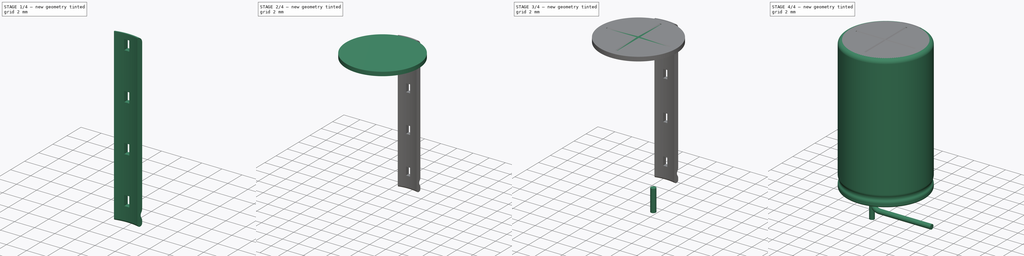
[diagram: build sequence overview — one tinted view per stage of 4, left to right]
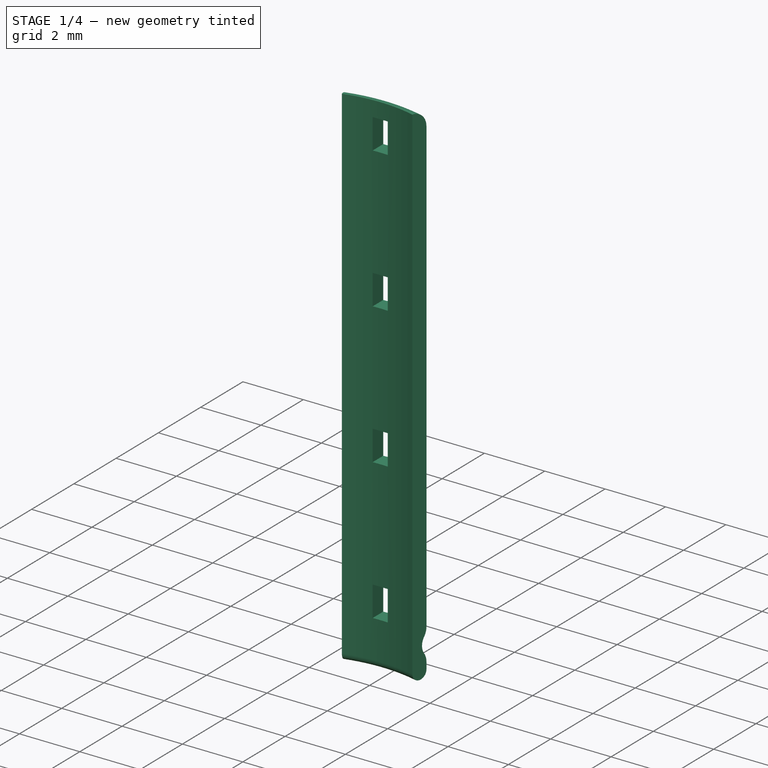
[diagram: stage 1 of 4 — iso view after this stage's code; geometry added in this stage tinted green]
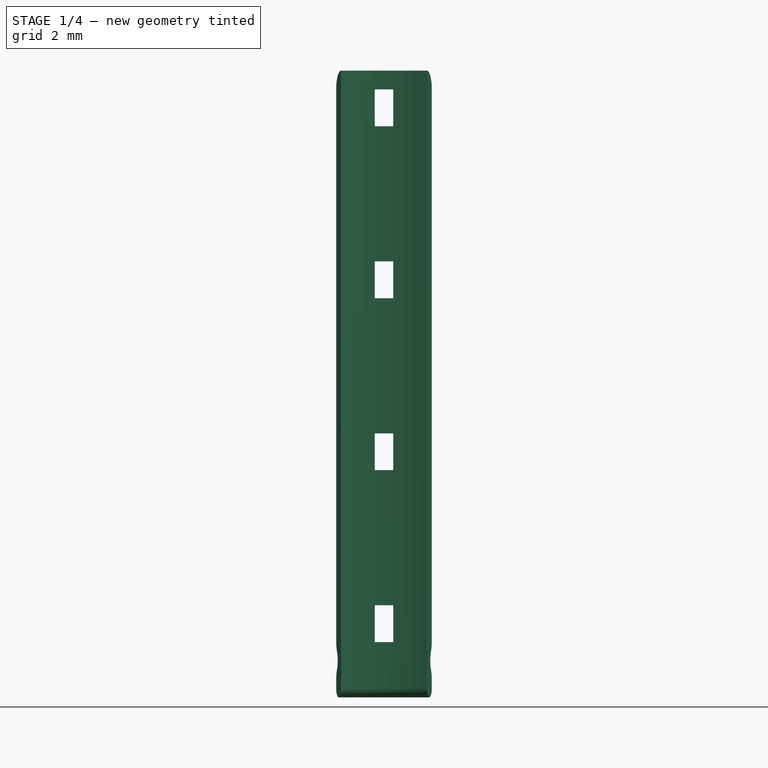
[diagram: stage 1 of 4 — front view after this stage's code; geometry added in this stage tinted green]
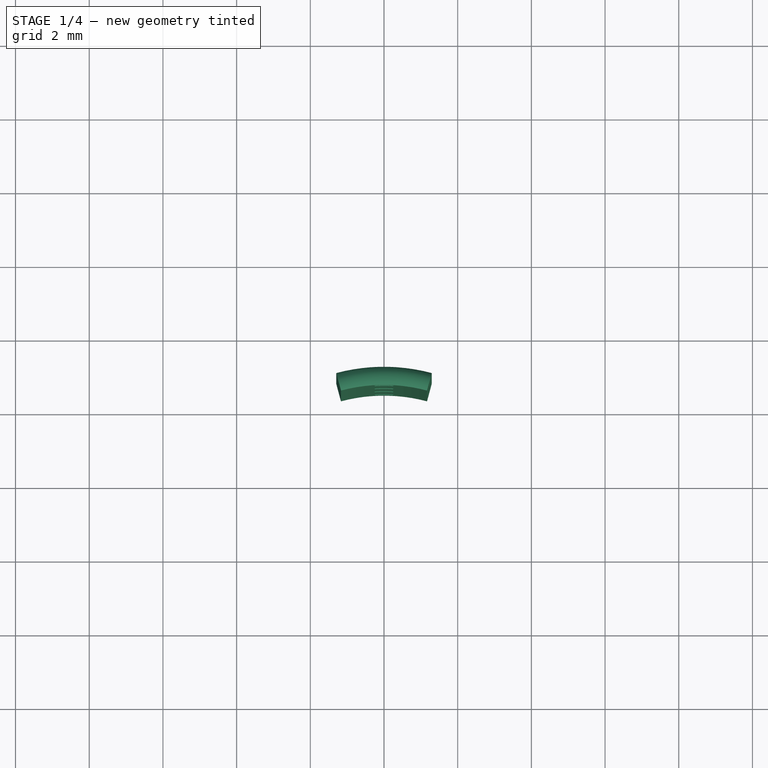
[diagram: stage 1 of 4 — top view after this stage's code; geometry added in this stage tinted green]
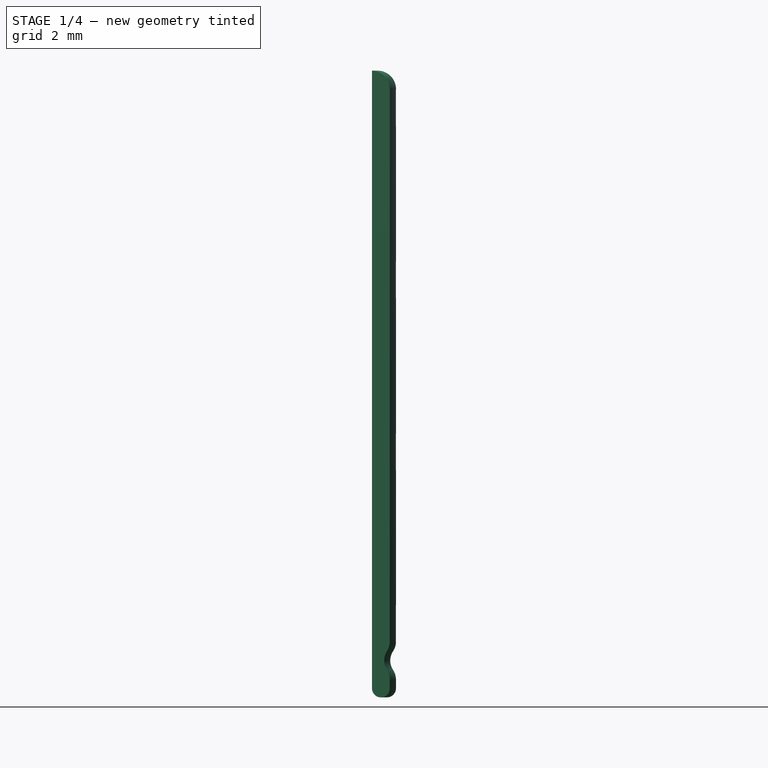
[diagram: stage 1 of 4 — right view after this stage's code; geometry added in this stage tinted green]
FCSTD DOCUMENT  (FreeCAD 0.19R16945 (Git))
Label: Capacitor_Electrolytic_THT_Radial_Straight_D10_H17_P5_d0.6_LL2.6
License: All rights reserved
LicenseURL: http://en.wikipedia.org/wiki/All_rights_reserved
objects: Sketcher::SketchObject×9, PartDesign::Body×7, PartDesign::ShapeBinder×3, PartDesign::Pocket×3, PartDesign::Revolution×2, PartDesign::FeatureBase×2, PartDesign::Pad×2, PartDesign::AdditivePipe×1, Spreadsheet::Sheet×1, PartDesign::PolarPattern×1, PartDesign::LinearPattern×1, Part::MultiFuse×1
note: 40 computed .brp shape members not serialized (recipe doc carries the construction recipe); baked Part::Feature solids carry a one-line shape summary decoded from their .brp

FEATURE [PartDesign::Body] Body003  label="LeadAngledClone"
  BaseFeature = -> Body002
  Group = -> [Clone]
  Origin = -> Origin003
  Placement = pos=(0,5,0) rot=(0,0,1;0rad)
  Tip = -> Clone
  expr: Placement.Base.y = Spreadsheet.leadpitch
FEATURE [Sketcher::SketchObject] Sketch005
  AttachmentOffset = pos=(0,0,0) rot=(0,1,0;0.261799rad)
  MapMode = 5
  Placement = pos=(0,0,0) rot=(0.476905,0.621515,0.621515;2.25159rad)
  Support = -> [YZ_Plane004]
  expr: Constraints[19] = Sketch.Constraints[25]
  expr: Constraints[15] = Sketch.Constraints[20] + 0.01mm
  expr: Constraints[18] = Sketch.Constraints[24]
  expr: Constraints[17] = Sketch.Constraints[23]
  expr: Constraints[12] = Sketch.Constraints[14]
  expr: Constraints[13] = Sketch.Constraints[15]
  expr: Constraints[6] = Sketch.Constraints[8]
  expr: Constraints[11] = Sketch.Constraints[13]
  expr: Constraints[5] = Sketch.Constraints[7] + 0.01mm
  sketch-geometry (9):
    g0: LineSegment StartX=5.01 StartY=16.51 StartZ=0 EndX=5.01 EndY=1.52394 EndZ=0
    g1: LineSegment StartX=5.01 StartY=0.476059 StartZ=0 EndX=5.01 EndY=0.25 EndZ=0
    g2: ArcOfCircle CenterX=4.51 CenterY=16.51 CenterZ=0 NormalX=0 NormalY=0 NormalZ=1 AngleXU=0 Radius=0.5 StartAngle=9e-16 EndAngle=1.5708
    g3: ArcOfCircle CenterX=5.31 CenterY=1 CenterZ=0 NormalX=0 NormalY=0 NormalZ=1 AngleXU=0 Radius=0.456302 StartAngle=2.56176 EndAngle=3.72142
    g4: ArcOfCircle CenterX=4.51 CenterY=1.52394 CenterZ=0 NormalX=0 NormalY=0 NormalZ=1 AngleXU=0 Radius=0.5 StartAngle=5.70335 EndAngle=6.28319
    g5: ArcOfCircle CenterX=4.51 CenterY=0.476059 CenterZ=0 NormalX=0 NormalY=0 NormalZ=1 AngleXU=0 Radius=0.5 StartAngle=0 EndAngle=0.579831
    g6: LineSegment StartX=0 StartY=17.01 StartZ=0 EndX=0 EndY=0 EndZ=0
    g7: ArcOfCircle CenterX=4.76 CenterY=0.25 CenterZ=0 NormalX=0 NormalY=0 NormalZ=1 AngleXU=0 Radius=0.25 StartAngle=3.14159 EndAngle=6.28319
    g8: LineSegment StartX=4.51 StartY=0.25 StartZ=0 EndX=4.51 EndY=17.01 EndZ=0
  constraints (25):
    c: PointOnObject(g6,g-2)
    c: Vertical(g0)
    c: Vertical(g1)
    c: Vertical(g1,g0)
    c: Tangent(g0,g2) = 1.5708
    c: DistanceX(g6,g0) = 5.01
    c: DistanceX(g2,g0) = 0.5
    c: Tangent(g3,g4) = 1.5708
    c: Tangent(g0,g4) = 1.5708
    c: Tangent(g1,g5) = 1.5708
    c: Tangent(g3,g5) = 1.5708
    c: DistanceX(g4,g0) = 0.5
    c: DistanceX(g5,g1) = 0.5
    c: DistanceY(g3,g3) = 0.5
    c: Coincident(g6,g-1)
    c: DistanceY(g6,g6) = 17.01
    c: Tangent(g1,g7) = 1.5708
    c: DistanceX(g7,g1) = 0.25
    c: DistanceY(g6,g3) = 1
    c: DistanceX(g1,g3) = 0.3
    c: Coincident(g8,g7)
    c: Coincident(g8,g2)
    c: Vertical(g8)
    c: Vertical(g2,g2)
    c: Horizontal(g2,g6)
FEATURE [PartDesign::Revolution] Revolution001
  Angle = 30
  Axis = (-2e-16,3e-16,1)
  Base = (0,0,0)
  Placement = pos=(0,0,0) rot=(0.57735,0.57735,0.57735;2.0944rad)
  Profile = -> Sketch005
  ReferenceAxis = -> Sketch005 [V_Axis]
  Reversed = true
FEATURE [PartDesign::Body] Body008  label="HousingTop"
  Group = -> [ShapeBinder002,Sketch013,Pad,Sketch014,Pocket001,PolarPattern]
  Origin = -> Origin008
  Tip = -> PolarPattern
FEATURE [Sketcher::SketchObject] Sketch015
  MapMode = 5
  Placement = pos=(0,0,0) rot=(1,0,0;1.5708rad)
  Support = -> [XZ_Plane004]
  sketch-geometry (4):
    g0: LineSegment StartX=-0.25 StartY=1.5 StartZ=0 EndX=0.25 EndY=1.5 EndZ=0
    g1: LineSegment StartX=0.25 StartY=1.5 StartZ=0 EndX=0.25 EndY=2.5 EndZ=0
    g2: LineSegment StartX=0.25 StartY=2.5 StartZ=0 EndX=-0.25 EndY=2.5 EndZ=0
    g3: LineSegment StartX=-0.25 StartY=2.5 StartZ=0 EndX=-0.25 EndY=1.5 EndZ=0
  constraints (11):
    c: Coincident(g0,g1)
    c: Coincident(g1,g2)
    c: Coincident(g2,g3)
    c: Coincident(g3,g0)
    c: Horizontal(g0)
    c: Vertical(g1)
    c: Vertical(g3)
    c: Symmetric(g1,g2,g-2)
    c: DistanceX(g0,g0) = 0.5
    c: DistanceY(g1,g1) = 1
    c: DistanceY(g-1,g0) = 1.5
FEATURE [PartDesign::Pocket] Pocket002
  BaseFeature = -> Revolution001
  Length = 5
  Length2 = 100
  Placement = pos=(0,0,0) rot=(0.57735,0.57735,0.57735;2.0944rad)
  Profile = -> Sketch015
  Type = 1
FEATURE [PartDesign::LinearPattern] LinearPattern
  BaseFeature = -> Pocket002
  Direction = -> Z_Axis004
  Length = 14
  Occurrences = 4
  Originals = -> [Pocket002]
  Placement = pos=(0,0,0) rot=(0.57735,0.57735,0.57735;2.0944rad)
  expr: Occurrences = floor(Spreadsheet.height / 3.5mm)
  expr: Length = Spreadsheet.height - 3mm
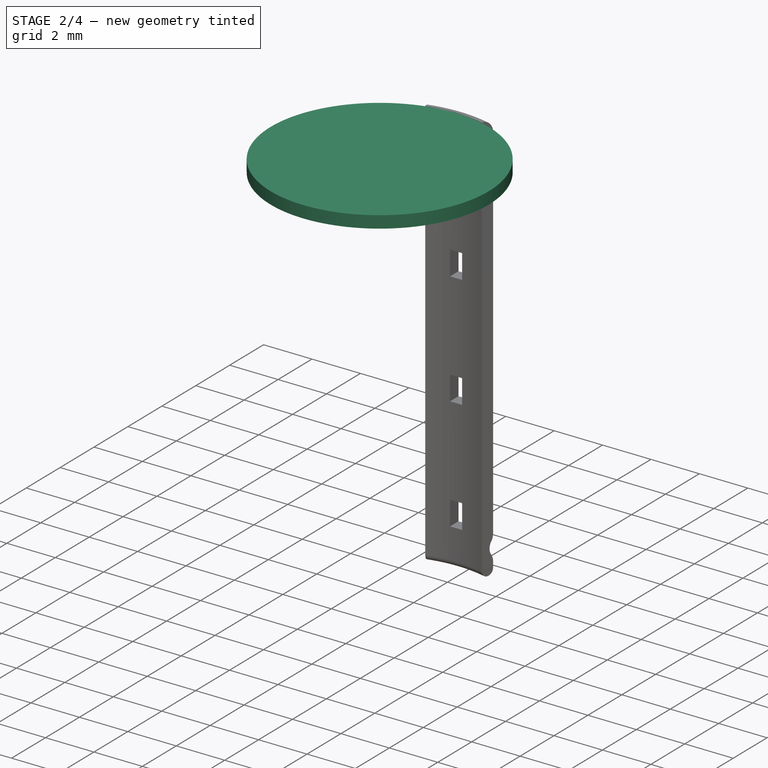
[diagram: stage 2 of 4 — iso view after this stage's code; geometry added in this stage tinted green]
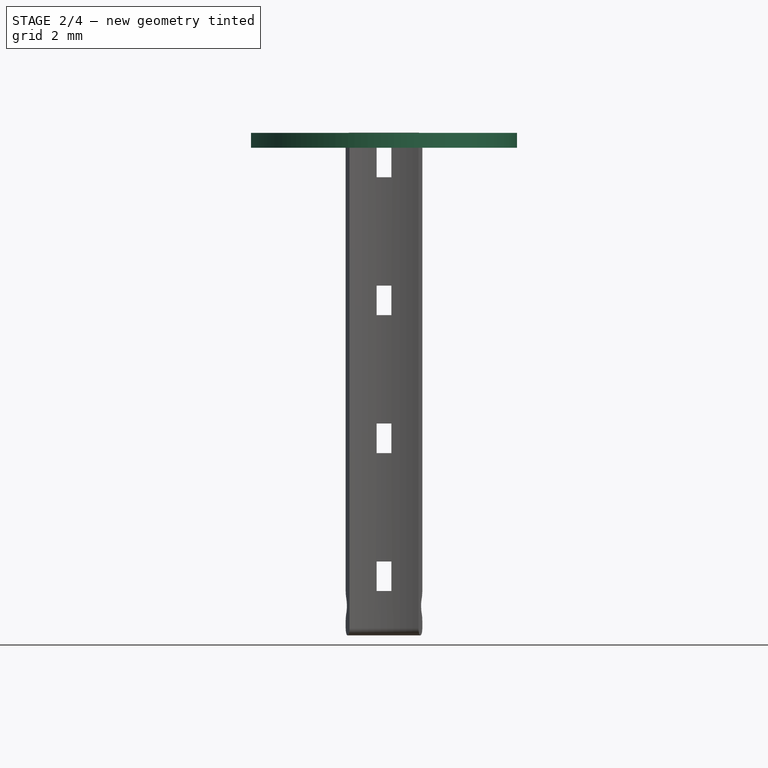
[diagram: stage 2 of 4 — front view after this stage's code; geometry added in this stage tinted green]
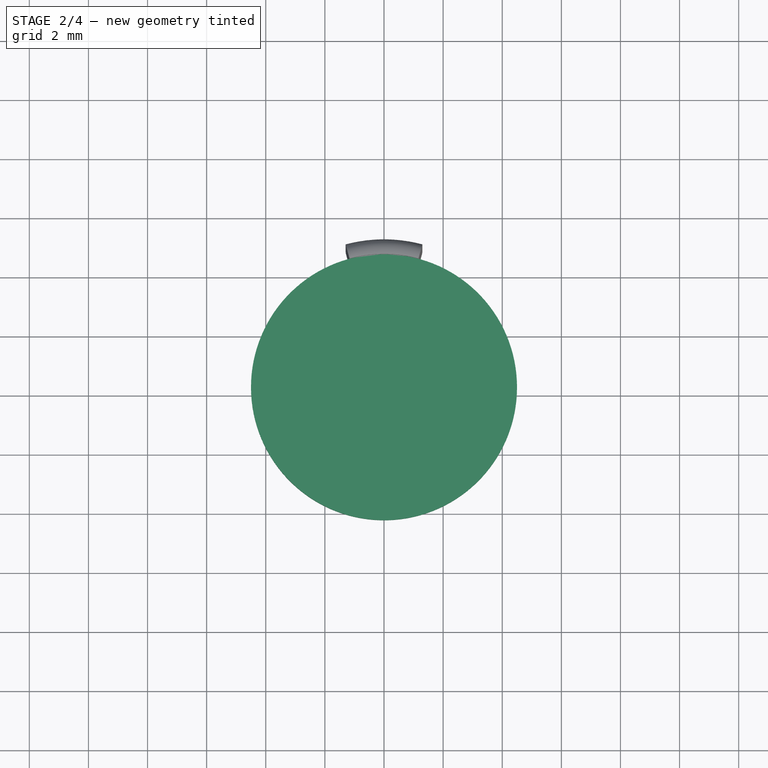
[diagram: stage 2 of 4 — top view after this stage's code; geometry added in this stage tinted green]
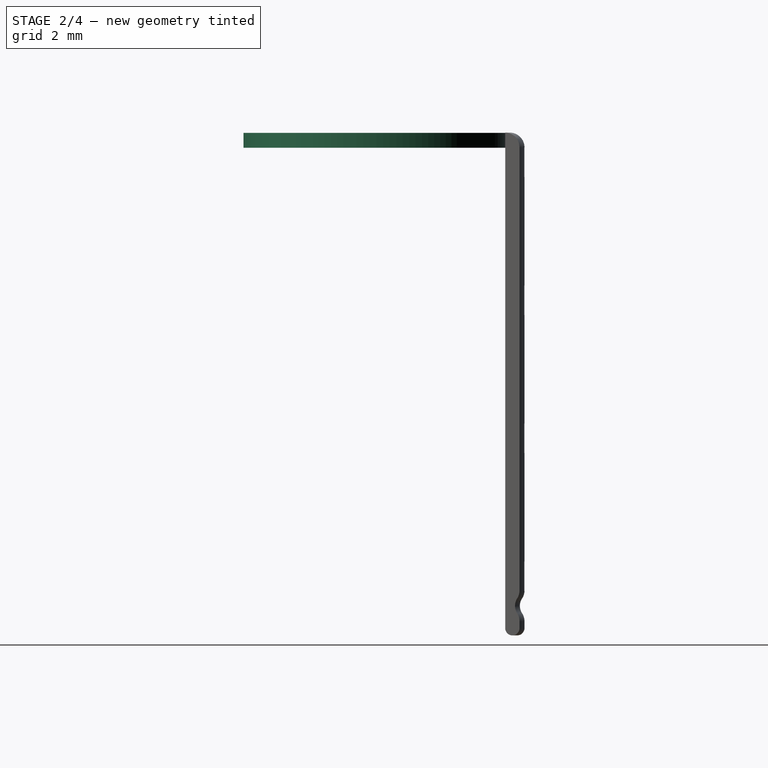
[diagram: stage 2 of 4 — right view after this stage's code; geometry added in this stage tinted green]
FEATURE [Sketcher::SketchObject] Sketch
  MapMode = 5
  Placement = pos=(0,0,0) rot=(1,0,0;1.5708rad)
  Support = -> [XZ_Plane]
  expr: Constraints[7] = Spreadsheet.diameter / 2
  expr: Constraints[20] = Spreadsheet.height
  sketch-geometry (10):
    g0: LineSegment StartX=0 StartY=17 StartZ=0 EndX=4.5 EndY=17 EndZ=0
    g1: LineSegment StartX=5 StartY=16.5 StartZ=0 EndX=5 EndY=1.52394 EndZ=0
    g2: LineSegment StartX=5 StartY=0.476059 StartZ=0 EndX=5 EndY=0.25 EndZ=0
    g3: ArcOfCircle CenterX=4.5 CenterY=16.5 CenterZ=0 NormalX=0 NormalY=0 NormalZ=1 AngleXU=0 Radius=0.5 StartAngle=-5.0173e-12 EndAngle=1.5708
    g4: ArcOfCircle CenterX=5.3 CenterY=1 CenterZ=0 NormalX=0 NormalY=0 NormalZ=1 AngleXU=0 Radius=0.456302 StartAngle=2.56176 EndAngle=3.72142
    g5: ArcOfCircle CenterX=4.5 CenterY=1.52394 CenterZ=0 NormalX=0 NormalY=0 NormalZ=1 AngleXU=0 Radius=0.5 StartAngle=5.70335 EndAngle=6.28319
    g6: ArcOfCircle CenterX=4.5 CenterY=0.476059 CenterZ=0 NormalX=0 NormalY=0 NormalZ=1 AngleXU=0 Radius=0.5 StartAngle=0 EndAngle=0.579831
    g7: LineSegment StartX=0 StartY=17 StartZ=0 EndX=0 EndY=0 EndZ=0
    g8: LineSegment StartX=0 StartY=0 StartZ=0 EndX=4.75 EndY=0 EndZ=0
    g9: ArcOfCircle CenterX=4.75 CenterY=0.25 CenterZ=0 NormalX=0 NormalY=0 NormalZ=1 AngleXU=0 Radius=0.25 StartAngle=4.71239 EndAngle=6.28319
  constraints (26):
    c: PointOnObject(g0,g-2)
    c: Horizontal(g0)
    c: Vertical(g1)
    c: Vertical(g2)
    c: Vertical(g2,g1)
    c: Tangent(g0,g3) = 1.5708
    c: Tangent(g1,g3) = 1.5708
    c: DistanceX(g0,g1) = 5
    c: DistanceX(g3,g1) = 0.5
    c: Tangent(g4,g5) = 1.5708
    c: Tangent(g1,g5) = 1.5708
    c: Tangent(g2,g6) = 1.5708
    c: Tangent(g4,g6) = 1.5708
    c: DistanceX(g5,g1) = 0.5
    c: DistanceX(g6,g2) = 0.5
    c: DistanceY(g4,g4) = 0.5
    c: Coincident(g0,g7)
    c: Coincident(g7,g8)
    c: Horizontal(g8)
    c: Coincident(g7,g-1)
    c: DistanceY(g7,g7) = 17
    c: Tangent(g2,g9) = 1.5708
    c: Tangent(g8,g9) = -1.5708
    c: DistanceX(g9,g2) = 0.25
    c: DistanceY(g7,g4) = 1
    c: DistanceX(g2,g4) = 0.3
FEATURE [PartDesign::Revolution] Revolution
  Angle = 360
  Axis = (0,-2e-16,1)
  Base = (0,0,0)
  Placement = pos=(0,0,0) rot=(1,0,0;1.5708rad)
  Profile = -> Sketch
  ReferenceAxis = -> Sketch [V_Axis]
  Reversed = true
FEATURE [PartDesign::Body] Body007  label="LeadStraightClone"
  BaseFeature = -> Body006
  Group = -> [Clone001]
  Origin = -> Origin007
  Placement = pos=(0,-5,0) rot=(0,0,1;0rad)
  Tip = -> Clone001
  expr: Placement.Base.y = -Spreadsheet.leadpitch
FEATURE [PartDesign::ShapeBinder] ShapeBinder
  Placement = pos=(0,0,0) rot=(1,0,0;1.5708rad)
  Support = -> [Revolution]
  TraceSupport = false
FEATURE [Sketcher::SketchObject] Sketch012
  AttachmentOffset = pos=(0,0,17) rot=(0,0,1;0rad)
  ExternalGeometry = -> [ShapeBinder]
  MapMode = 5
  Placement = pos=(0,0,17) rot=(0,0,1;0rad)
  Support = -> [XY_Plane]
  expr: AttachmentOffset.Base.z = Spreadsheet.height
  sketch-geometry (1):
    g0: Circle CenterX=0 CenterY=0 CenterZ=0 NormalX=0 NormalY=0 NormalZ=1 AngleXU=0 Radius=4.5
  constraints (2):
    c: Coincident(g0,g-1)
    c: Tangent(g0,g-3)
FEATURE [PartDesign::Pocket] Pocket
  BaseFeature = -> Revolution
  Length = 0.5
  Length2 = 100
  Placement = pos=(0,0,0) rot=(1,0,0;1.5708rad)
  Profile = -> Sketch012
  Type = 0
FEATURE [PartDesign::Body] Body  label="Housing"
  Group = -> [Sketch,Revolution,ShapeBinder,Sketch012,Pocket]
  Origin = -> Origin
  Tip = -> Pocket
FEATURE [PartDesign::ShapeBinder] ShapeBinder002
  Placement = pos=(0,0,-0.5) rot=(0,0,1;0rad)
  Support = -> [Pocket]
  TraceSupport = false
FEATURE [Sketcher::SketchObject] Sketch013
  ExternalGeometry = -> [ShapeBinder002]
  MapMode = 5
  Placement = pos=(0,0,16.5) rot=(0,0,1;0rad)
  Support = -> [ShapeBinder002]
  sketch-geometry (1):
    g0: Circle CenterX=0 CenterY=0 CenterZ=0 NormalX=0 NormalY=0 NormalZ=1 AngleXU=0 Radius=4.5
  constraints (2):
    c: Coincident(g0,g-1)
    c: Equal(g-3,g0)
FEATURE [PartDesign::Pad] Pad
  Length = 0.5
  Length2 = 100
  Placement = pos=(0,0,-0.5) rot=(0,0,1;0rad)
  Profile = -> Sketch013
  Type = 0
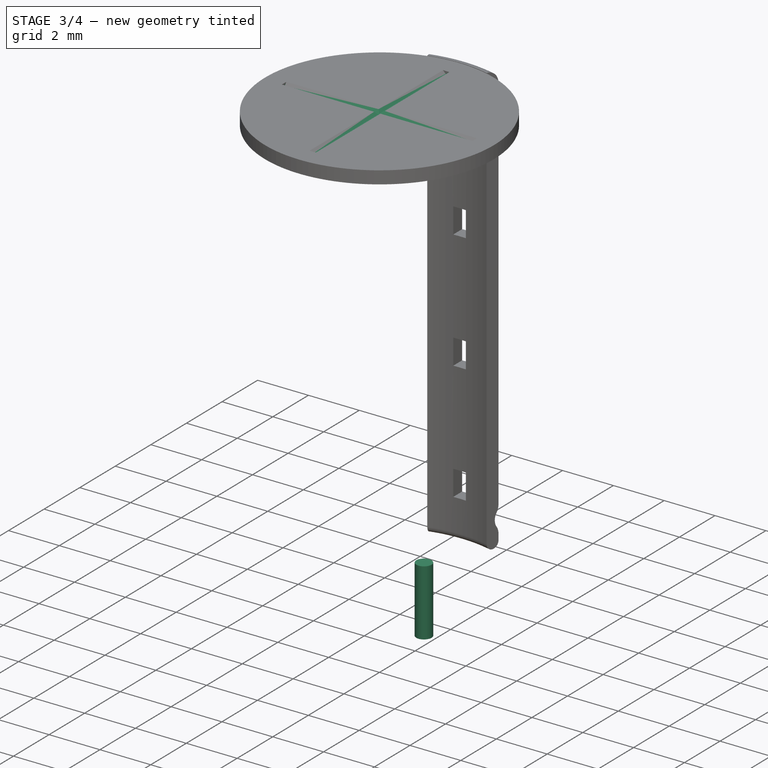
[diagram: stage 3 of 4 — iso view after this stage's code; geometry added in this stage tinted green]
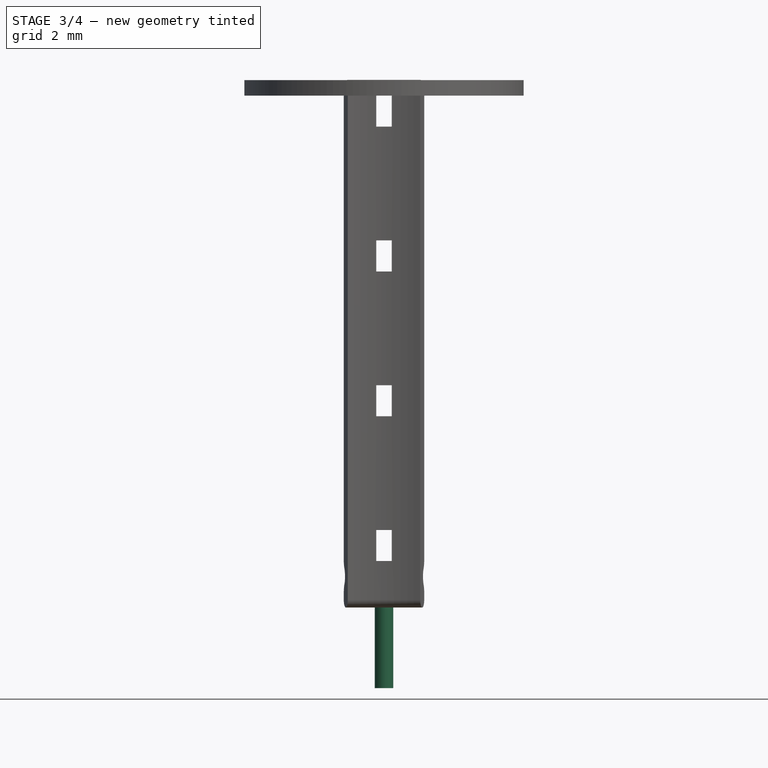
[diagram: stage 3 of 4 — front view after this stage's code; geometry added in this stage tinted green]
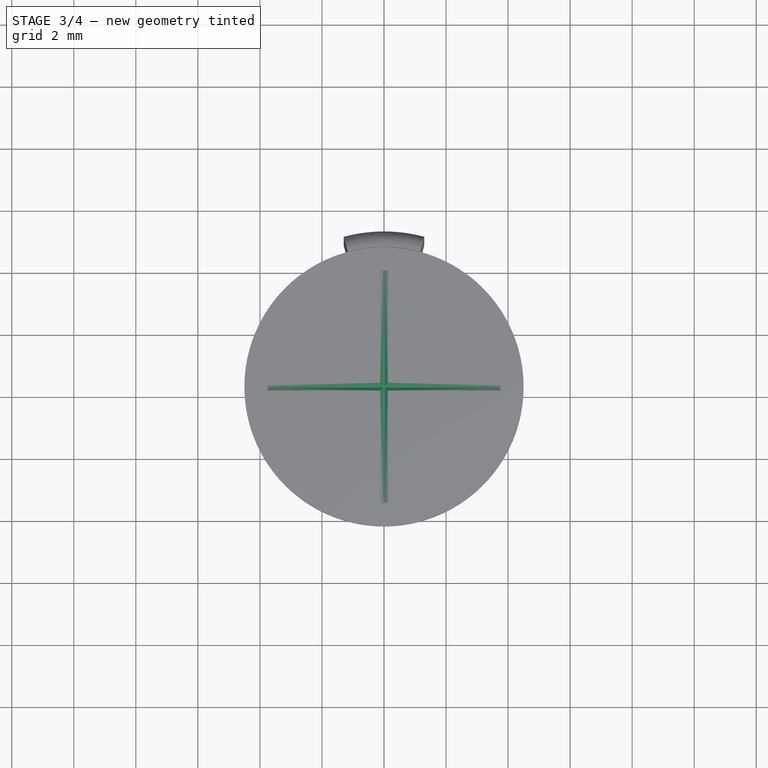
[diagram: stage 3 of 4 — top view after this stage's code; geometry added in this stage tinted green]
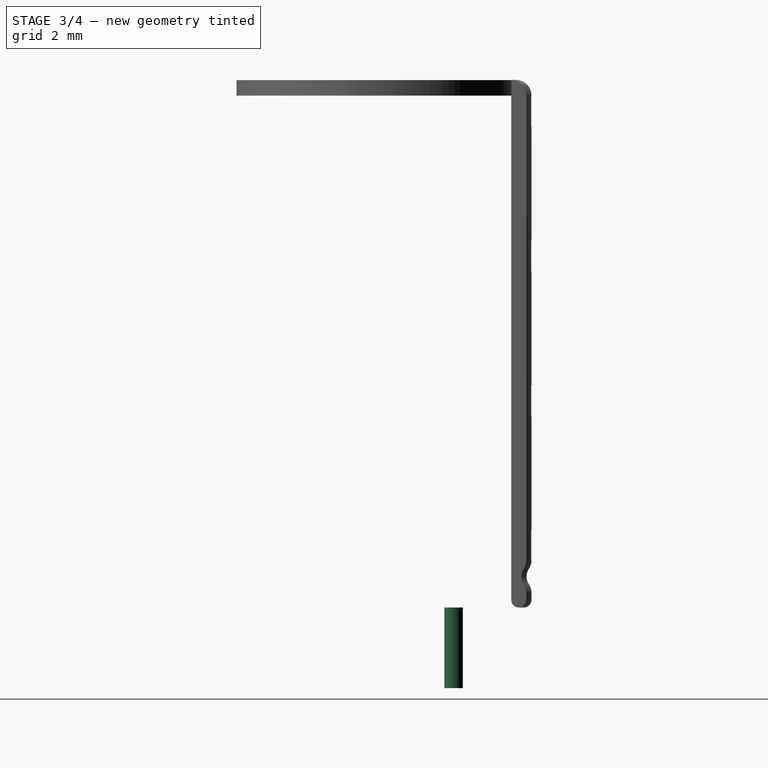
[diagram: stage 3 of 4 — right view after this stage's code; geometry added in this stage tinted green]
FEATURE [Sketcher::SketchObject] Sketch010
  AttachmentOffset = pos=(0,2.5,0) rot=(0,0,1;0rad)
  MapMode = 5
  Placement = pos=(0,2.5,0) rot=(0,0,1;0rad)
  Support = -> [XY_Plane006]
  expr: AttachmentOffset.Base.y = Spreadsheet.leadpitch / 2
  expr: Constraints[1] = Spreadsheet.leaddiameter / 2
  sketch-geometry (1):
    g0: Circle CenterX=0 CenterY=0 CenterZ=0 NormalX=0 NormalY=0 NormalZ=1 AngleXU=0 Radius=0.3
  constraints (2):
    c: Coincident(g0,g-1)
    c: Radius(g0) = 0.3
FEATURE [PartDesign::Pad] Pad002
  Length = 2.6
  Length2 = 100
  Profile = -> Sketch010
  Reversed = true
  Type = 0
  expr: Length = Spreadsheet.leadstraightlength
FEATURE [PartDesign::Body] Body006  label="LeadStraight"
  Group = -> [Sketch010,Pad002]
  Origin = -> Origin006
  Tip = -> Pad002
FEATURE [PartDesign::FeatureBase] Clone001
  BaseFeature = -> Body006
FEATURE [Sketcher::SketchObject] Sketch014
  MapMode = 5
  Placement = pos=(0,0,0) rot=(1,0,0;1.5708rad)
  Support = -> [XZ_Plane008]
  expr: Constraints[9] = Spreadsheet.height
  sketch-geometry (4):
    g0: LineSegment StartX=-0.125 StartY=17 StartZ=0 EndX=0.125 EndY=17 EndZ=0
    g1: LineSegment StartX=0.125 StartY=17 StartZ=0 EndX=0.025 EndY=16.9 EndZ=0
    g2: LineSegment StartX=0.025 StartY=16.9 StartZ=0 EndX=-0.025 EndY=16.9 EndZ=0
    g3: LineSegment StartX=-0.025 StartY=16.9 StartZ=0 EndX=-0.125 EndY=17 EndZ=0
  constraints (10):
    c: Coincident(g0,g1)
    c: Coincident(g1,g2)
    c: Coincident(g2,g3)
    c: Coincident(g3,g0)
    c: Symmetric(g0,g0,g-2)
    c: Symmetric(g1,g2,g-2)
    c: DistanceX(g2,g2) = 0.05
    c: DistanceX(g0,g0) = 0.25
    c: DistanceY(g1,g0) = 0.1
    c: DistanceY(g-1,g0) = 17
FEATURE [PartDesign::Pocket] Pocket001
  BaseFeature = -> Pad
  Length = 7.5
  Length2 = 100
  Midplane = true
  Placement = pos=(0,0,-0.5) rot=(0,0,1;0rad)
  Profile = -> Sketch014
  Type = 0
  expr: Length = 0.75 * Spreadsheet.diameter
FEATURE [PartDesign::PolarPattern] PolarPattern
  Angle = 180
  Axis = -> Z_Axis008
  BaseFeature = -> Pocket001
  Occurrences = 3
  Originals = -> [Pocket001]
  Placement = pos=(0,0,-0.5) rot=(0,0,1;0rad)
  Refine = true
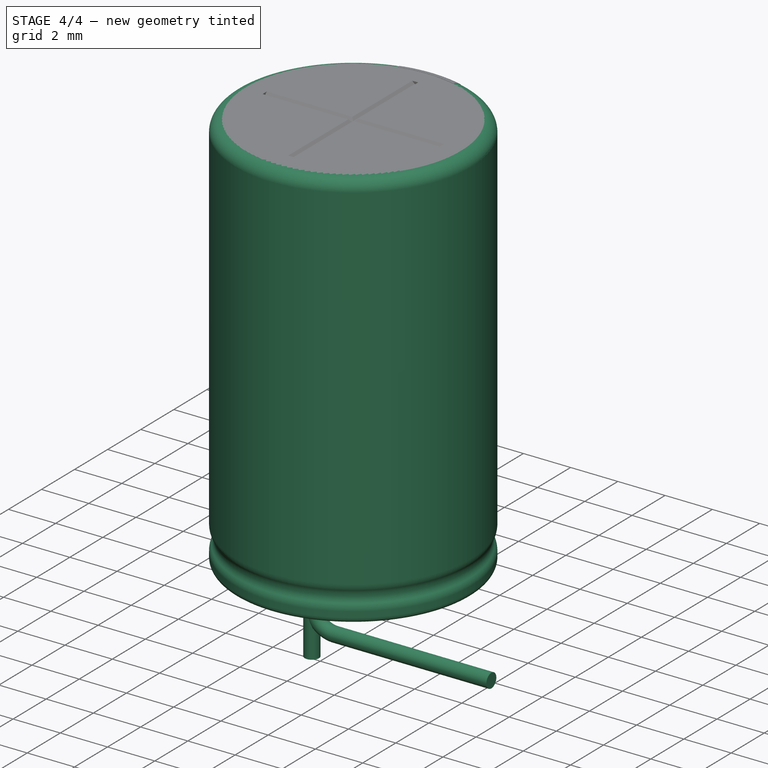
[diagram: stage 4 of 4 — iso view after this stage's code; geometry added in this stage tinted green]
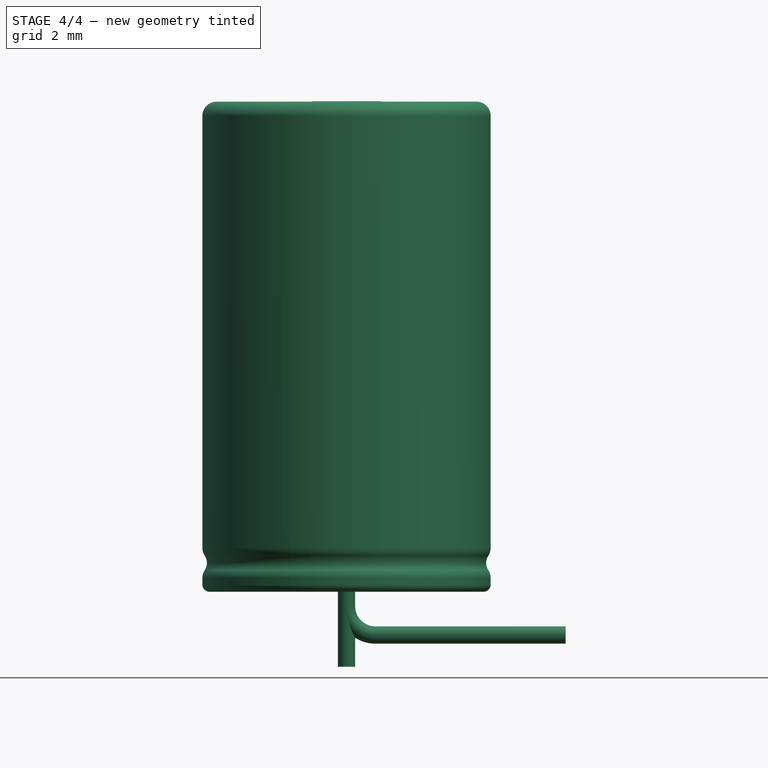
[diagram: stage 4 of 4 — front view after this stage's code; geometry added in this stage tinted green]
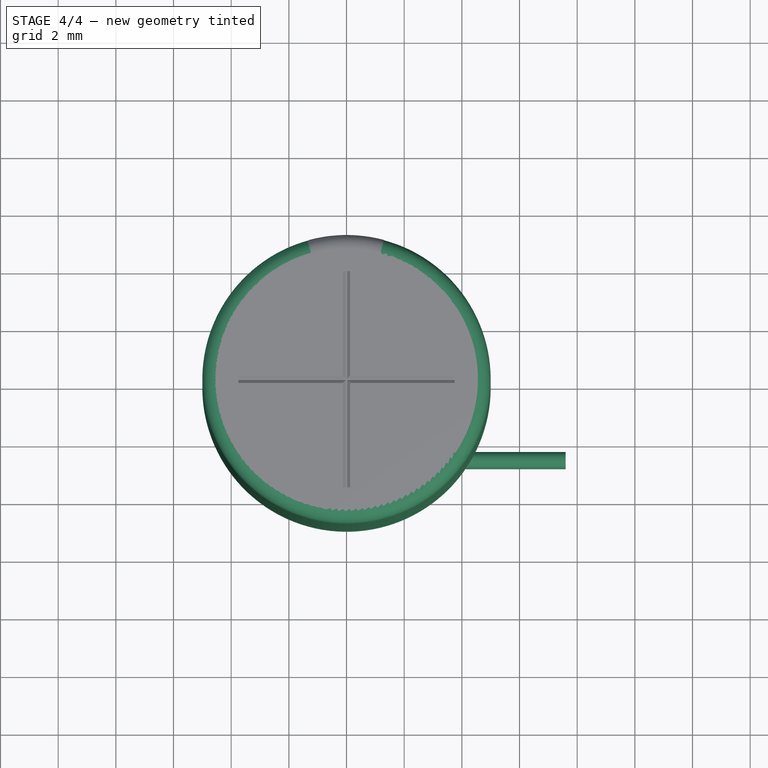
[diagram: stage 4 of 4 — top view after this stage's code; geometry added in this stage tinted green]
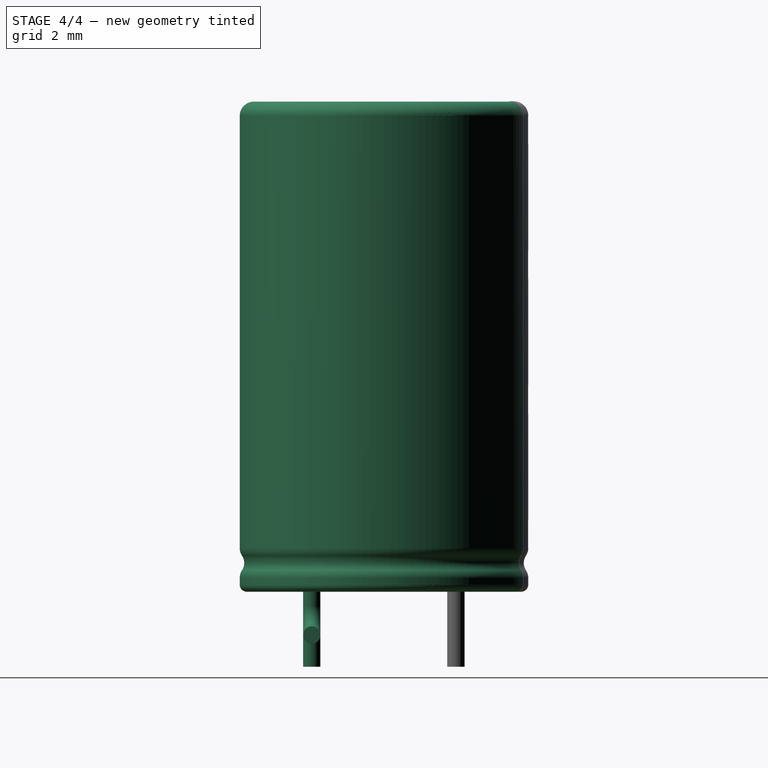
[diagram: stage 4 of 4 — right view after this stage's code; geometry added in this stage tinted green]
FEATURE [PartDesign::ShapeBinder] ShapeBinder001
  Placement = pos=(0,1e-16,-0.5) rot=(0,0,1;0rad)
  TraceSupport = false
FEATURE [Sketcher::SketchObject] Sketch003  label="dia-pitch"
  MapMode = 5
  Placement = pos=(0,0,5.8e-14) rot=(1,0,0;3.14159rad)
  Support = -> [ShapeBinder001]
  expr: Constraints[2] = Spreadsheet.leadpitch / 2
  expr: Constraints[1] = Spreadsheet.leaddiameter / 2
  sketch-geometry (1):
    g0: Circle CenterX=0 CenterY=2.5 CenterZ=0 NormalX=0 NormalY=0 NormalZ=1 AngleXU=0 Radius=0.3
  constraints (3):
    c: PointOnObject(g0,g-2)
    c: Radius(g0) = 0.3
    c: DistanceY(g-1,g0) = 2.5
FEATURE [Sketcher::SketchObject] Sketch004  label="bentprofile"
  MapMode = 5
  Placement = pos=(0,0,0) rot=(1,0,0;1.5708rad)
  Support = -> [XZ_Plane002]
  expr: Constraints[7] = Spreadsheet.diameter / 2 + 2.6mm
  expr: Constraints[5] = Spreadsheet.leadangledradius
  expr: Constraints[6] = Spreadsheet.leadangledstraight
  sketch-geometry (3):
    g0: LineSegment StartX=0 StartY=0 StartZ=0 EndX=0 EndY=-0.5 EndZ=0
    g1: LineSegment StartX=1 StartY=-1.5 StartZ=0 EndX=7.6 EndY=-1.5 EndZ=0
    g2: ArcOfCircle CenterX=1 CenterY=-0.5 CenterZ=0 NormalX=0 NormalY=0 NormalZ=1 AngleXU=0 Radius=1 StartAngle=3.14159 EndAngle=4.71239
  constraints (8):
    c: Coincident(g-1,g0)
    c: Vertical(g0)
    c: Horizontal(g1)
    c: Tangent(g0,g2) = -1.5708
    c: Tangent(g1,g2) = -1.5708
    c: Radius(g2) = 1
    c: DistanceY(g0,g0) = 0.5
    c: DistanceX(g0,g1) = 7.6
FEATURE [PartDesign::AdditivePipe] AdditivePipe
  AuxilleryCurvelinear = true
  AuxillerySpineTangent = false
  Binormal = (0,0,0)
  Mode = 0
  Placement = pos=(0,1e-16,-0.5) rot=(0,0,1;0rad)
  Profile = -> Sketch003
  Spine = -> Sketch004
  SpineTangent = false
  Transformation = 0
  Transition = 0
FEATURE [PartDesign::Body] Body002  label="LeadAngled"
  Group = -> [ShapeBinder001,Sketch003,Sketch004,AdditivePipe]
  Origin = -> Origin002
  Tip = -> AdditivePipe
FEATURE [Spreadsheet::Sheet] Spreadsheet
  cells = A2=diameter; B2(diameter)==10mm; A3=height; B3(height)==17mm; A5=leaddiameter; B5(leaddiameter)==0.6mm; A6=leadpitch; B6(leadpitch)==5mm; A8=leadangledstraight; B8(leadangledstraight)==0.5mm; A9=leadangledradius; B9(leadangledradius)==1mm; A10=leadangledextra; B10(leadangledextra)==2.6mm; A12=leadstraightlength; B12(leadstraightlength)==2.6mm
FEATURE [PartDesign::FeatureBase] Clone
  BaseFeature = -> Body002
FEATURE [PartDesign::Body] Body004  label="PolarityMarking"
  Group = -> [Sketch005,Revolution001,Sketch015,Pocket002,LinearPattern]
  Origin = -> Origin004
  Tip = -> LinearPattern
FEATURE [Part::MultiFuse] Fusion  label="Capacitor_Electrolytic_THT_Radial_Straight_D10_H17_P5_d0.6_LL2.6"
  Shapes = -> [Body,Body004,Body006,Body007,Body008]
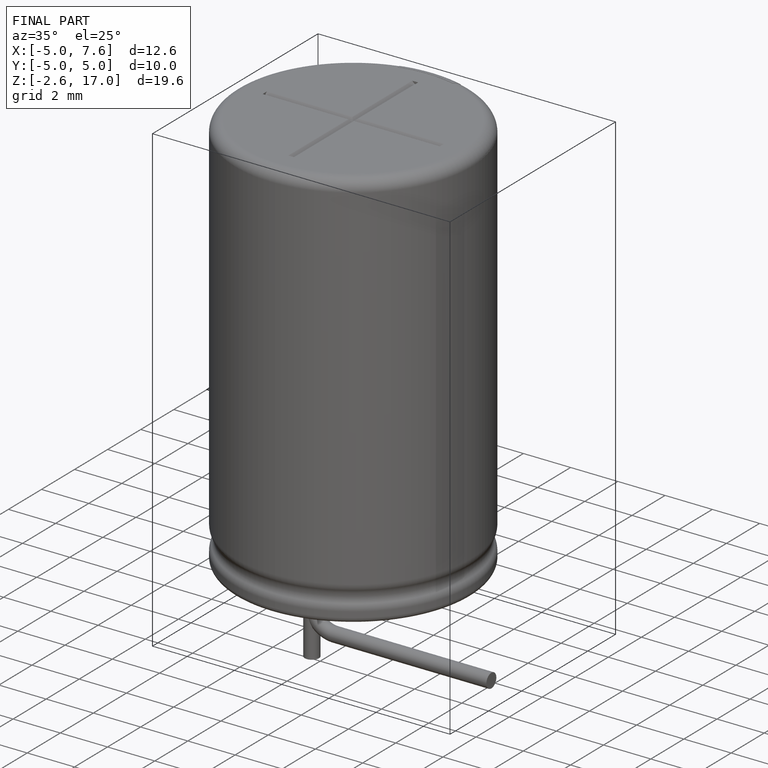
[diagram: finished part — iso view with bounding-box wireframe]
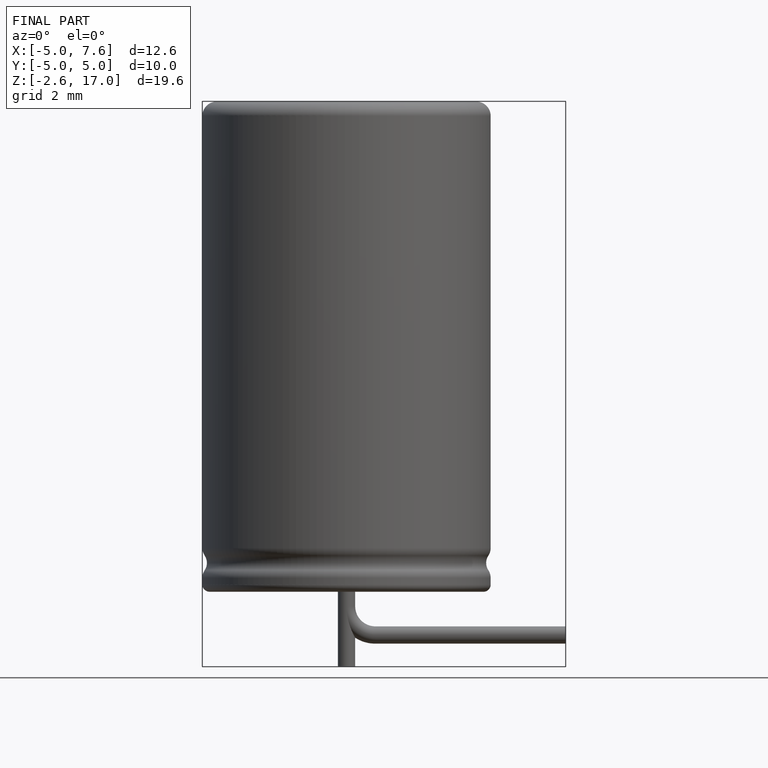
[diagram: finished part — front view with bounding-box wireframe]
